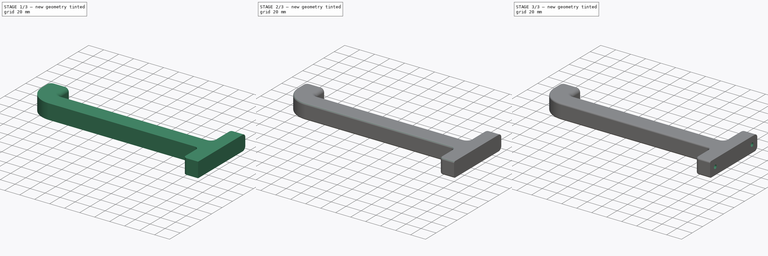
[diagram: build sequence overview — one tinted view per stage of 3, left to right]
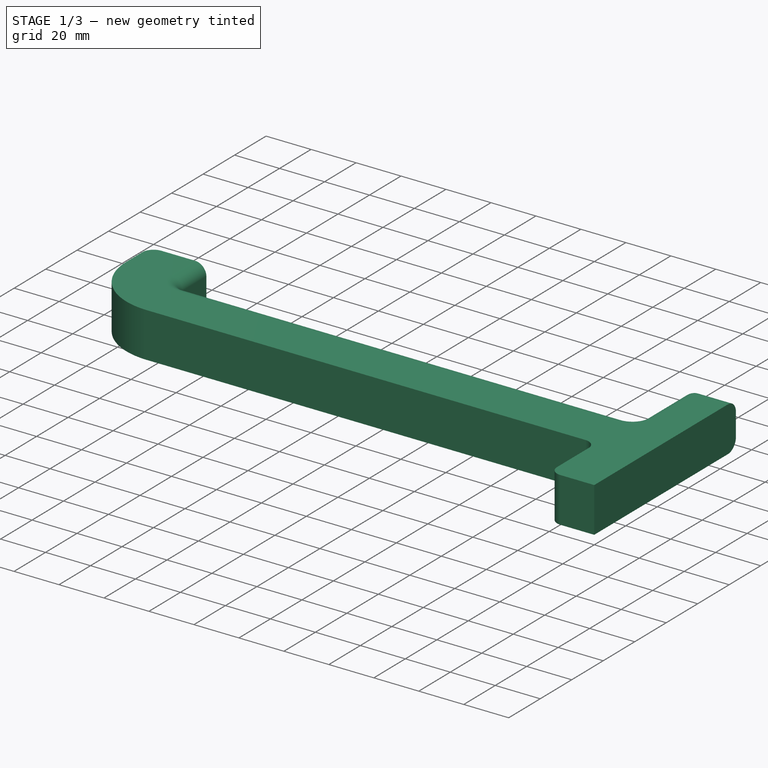
[diagram: stage 1 of 3 — iso view after this stage's code; geometry added in this stage tinted green]
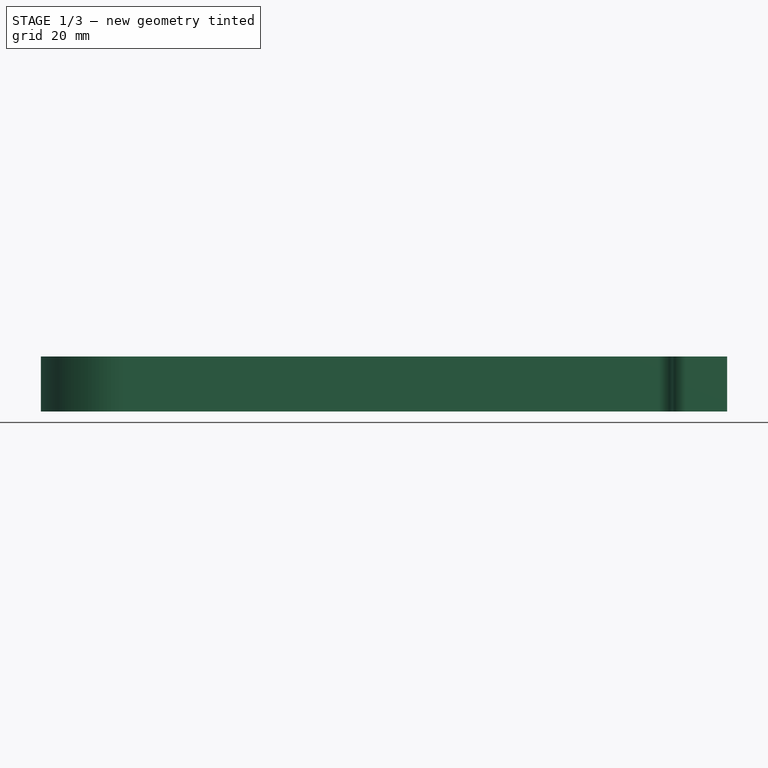
[diagram: stage 1 of 3 — front view after this stage's code; geometry added in this stage tinted green]
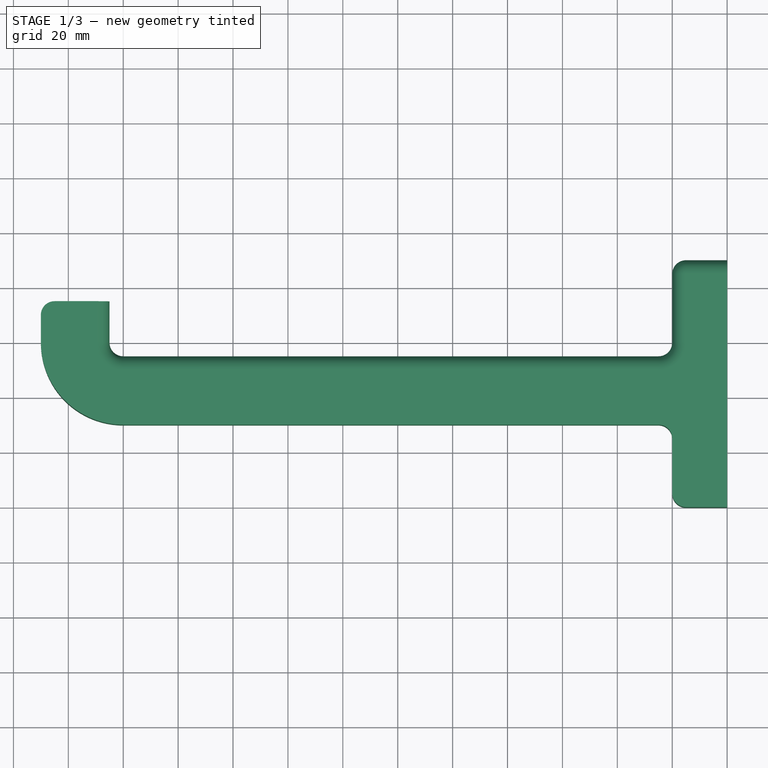
[diagram: stage 1 of 3 — top view after this stage's code; geometry added in this stage tinted green]
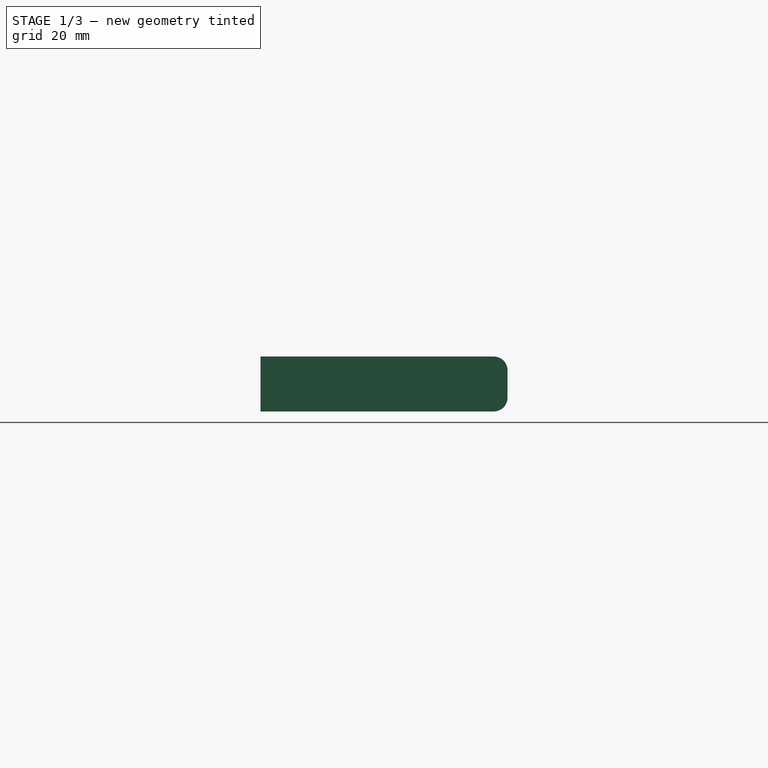
[diagram: stage 1 of 3 — right view after this stage's code; geometry added in this stage tinted green]
FCSTD DOCUMENT  (FreeCAD 0.21R33694 (Git))
Label: wheelhook
License: All rights reserved
LicenseURL: http://en.wikipedia.org/wiki/All_rights_reserved
objects: Sketcher::SketchObject×2, PartDesign::Fillet×2, Spreadsheet::Sheet×1, PartDesign::Pad×1, PartDesign::Plane×1, PartDesign::Pocket×1, PartDesign::Chamfer×1, PartDesign::Body×1
note: 14 computed .brp shape members not serialized (recipe doc carries the construction recipe); baked Part::Feature solids carry a one-line shape summary decoded from their .brp

FEATURE [Sketcher::SketchObject] Sketch
  FullyConstrained = true
  MapMode = 5
  Support = -> [XY_Plane]
  expr: Constraints[10] = <<settings>>.mounting_hole_spacing + <<settings>>.mounting_hole_edge
  expr: Constraints[14] = <<settings>>.mounting_plate_thickness
  expr: Constraints[23] = <<settings>>.hook_thickness
  expr: Constraints[24] = <<settings>>.hook_height
  expr: Constraints[25] = <<settings>>.hook_length + <<settings>>.mounting_plate_thickness
  expr: Constraints[29] = <<settings>>.hook_thickness
  expr: Constraints[33] = <<settings>>.hook_potrusion
  expr: Constraints[69] = <<settings>>.fillet_size
  expr: Constraints[70] = <<settings>>.fillet_size
  expr: Constraints[73] = <<settings>>.fillet_size + <<settings>>.hook_thickness
  expr: Constraints[82] = <<settings>>.fillet_size
  expr: Constraints[83] = <<settings>>.fillet_size
  expr: Constraints[9] = <<settings>>.mounting_hole_edge
  sketch-geometry (36):
    g0: LineSegment StartX=0 StartY=-80 StartZ=0 EndX=-250 EndY=-80 EndZ=0
    g1: LineSegment StartX=-250 StartY=-80 StartZ=0 EndX=-250 EndY=10 EndZ=0
    g2: LineSegment StartX=-250 StartY=10 StartZ=0 EndX=0 EndY=10 EndZ=0
    g3: LineSegment StartX=0 StartY=10 StartZ=0 EndX=0 EndY=-80 EndZ=0
    g4: GeomPoint X=-20 Y=-80 Z=0
    g5: GeomPoint X=-20 Y=10 Z=0
    g6: LineSegment StartX=-20 StartY=10 StartZ=0 EndX=-20 EndY=-80 EndZ=0
    g7: LineSegment StartX=-20 StartY=-50 StartZ=0 EndX=-250 EndY=-50 EndZ=0
    g8: LineSegment StartX=-20 StartY=-25 StartZ=0 EndX=-250 EndY=-25 EndZ=0
    g9: LineSegment StartX=-225 StartY=10 StartZ=0 EndX=-225 EndY=-80 EndZ=0
    g10: LineSegment StartX=-250 StartY=-5 StartZ=0 EndX=-225 EndY=-5 EndZ=0
    g11: LineSegment StartX=0 StartY=10 StartZ=0 EndX=0 EndY=-80 EndZ=0
    g12: LineSegment StartX=0 StartY=-80 StartZ=0 EndX=-15 EndY=-80 EndZ=0
    g13: LineSegment StartX=-20 StartY=-75 StartZ=0 EndX=-20 EndY=-55 EndZ=0
    g14: ArcOfCircle CenterX=-15 CenterY=-75 CenterZ=0 NormalX=0 NormalY=0 NormalZ=1 AngleXU=0 Radius=5 StartAngle=3.14159 EndAngle=4.71239
    g15: GeomPoint X=-20 Y=-80 Z=0
    g16: LineSegment StartX=-25 StartY=-50 StartZ=0 EndX=-220 EndY=-50 EndZ=0
    g17: LineSegment StartX=-250 StartY=-20 StartZ=0 EndX=-250 EndY=-10 EndZ=0
    g18: LineSegment StartX=-245 StartY=-5 StartZ=0 EndX=-225 EndY=-5 EndZ=0
    g19: GeomPoint X=-225 Y=-25 Z=0
    g20: LineSegment StartX=-225 StartY=-5 StartZ=0 EndX=-225 EndY=-20 EndZ=0
    g21: LineSegment StartX=-220 StartY=-25 StartZ=0 EndX=-25 EndY=-25 EndZ=0
    g22: LineSegment StartX=-20 StartY=5 StartZ=0 EndX=-20 EndY=-20 EndZ=0
    g23: LineSegment StartX=0 StartY=10 StartZ=0 EndX=-15 EndY=10 EndZ=0
    g24: ArcOfCircle CenterX=-15 CenterY=5 CenterZ=0 NormalX=0 NormalY=0 NormalZ=1 AngleXU=0 Radius=5 StartAngle=1.5708 EndAngle=3.14159
    g25: GeomPoint X=-20 Y=10 Z=0
    g26: ArcOfCircle CenterX=-25 CenterY=-55 CenterZ=0 NormalX=0 NormalY=0 NormalZ=1 AngleXU=0 Radius=5 StartAngle=6e-16 EndAngle=1.5708
    g27: GeomPoint X=-20 Y=-50 Z=0
    g28: ArcOfCircle CenterX=-25 CenterY=-20 CenterZ=0 NormalX=0 NormalY=0 NormalZ=1 AngleXU=0 Radius=5 StartAngle=4.71239 EndAngle=6.28319
    g29: GeomPoint X=-20 Y=-25 Z=0
    g30: ArcOfCircle CenterX=-220 CenterY=-20 CenterZ=0 NormalX=0 NormalY=0 NormalZ=1 AngleXU=0 Radius=30 StartAngle=3.14159 EndAngle=4.71239
    g31: GeomPoint X=-250 Y=-50 Z=0
    g32: ArcOfCircle CenterX=-245 CenterY=-10 CenterZ=0 NormalX=0 NormalY=0 NormalZ=1 AngleXU=0 Radius=5 StartAngle=1.5708 EndAngle=3.14159
    g33: GeomPoint X=-250 Y=-5 Z=0
    g34: ArcOfCircle CenterX=-220 CenterY=-20 CenterZ=0 NormalX=0 NormalY=0 NormalZ=1 AngleXU=0 Radius=5 StartAngle=3.14159 EndAngle=4.71239
    g35: GeomPoint X=-225 Y=-25 Z=0
  constraints (84):
    c: Coincident(g0,g1)
    c: Coincident(g1,g2)
    c: Coincident(g2,g3)
    c: Coincident(g3,g0)
    c: Horizontal(g0)
    c: Horizontal(g2)
    c: Vertical(g1)
    c: Vertical(g3)
    c: PointOnObject(g0,g-2)
    c: Distance(g-1,g2) = 10
    c: Distance(g-1,g0) = 80
    c: PointOnObject(g4,g0)
    c: PointOnObject(g5,g2)
    c: Vertical(g4,g5)
    c: Distance(g4,g0) = 20
    c: Coincident(g6,g5)
    c: Coincident(g6,g4)
    c: PointOnObject(g7,g6)
    c: PointOnObject(g7,g1)
    c: Horizontal(g7)
    c: PointOnObject(g8,g6)
    c: PointOnObject(g8,g1)
    c: Horizontal(g8)
    c: Distance(g7,g8) = 25
    c: Distance(g7,g4) = 30
    c: Distance(g0,g0) = 250
    c: PointOnObject(g9,g2)
    c: PointOnObject(g9,g0)
    c: Vertical(g9)
    c: Distance(g9,g0) = 25
    c: PointOnObject(g10,g1)
    c: PointOnObject(g10,g9)
    c: Horizontal(g10)
    c: Distance(g10,g8) = 20
    c: Coincident(g11,g2)
    c: Coincident(g11,g0)
    c: Coincident(g12,g11)
    c: Coincident(g15,g4)
    c: Coincident(g27,g7)
    c: PointOnObject(g15,g12)
    c: PointOnObject(g15,g13)
    c: Tangent(g12,g14) = 1.5708
    c: Tangent(g13,g14) = 1.5708
    c: Coincident(g31,g7)
    c: Coincident(g33,g10)
    c: Coincident(g18,g10)
    c: PointOnObject(g19,g9)
    c: PointOnObject(g19,g8)
    c: Coincident(g20,g18)
    c: Coincident(g35,g19)
    c: Coincident(g29,g8)
    c: Coincident(g25,g5)
    c: Coincident(g23,g11)
    c: PointOnObject(g25,g23)
    c: PointOnObject(g25,g22)
    c: Tangent(g23,g24) = -1.5708
    c: Tangent(g22,g24) = -1.5708
    c: PointOnObject(g27,g13)
    c: PointOnObject(g27,g16)
    c: Tangent(g13,g26) = -1.5708
    c: Tangent(g16,g26) = -1.5708
    c: PointOnObject(g29,g22)
    c: PointOnObject(g29,g21)
    c: Tangent(g22,g28) = 1.5708
    c: Tangent(g21,g28) = -1.5708
    c: PointOnObject(g31,g16)
    c: PointOnObject(g31,g17)
    c: Tangent(g16,g30) = 1.5708
    c: Tangent(g17,g30) = 1.5708
    c: Distance(g24,g22) = 5
    c: Distance(g22,g28) = 5
    c: Vertical(g28,g26)
    c: Vertical(g14,g24)
    c: Distance(g17,g30) = 30
    c: PointOnObject(g33,g18)
    c: PointOnObject(g33,g17)
    c: Tangent(g18,g32) = 1.5708
    c: Tangent(g17,g32) = 1.5708
    c: PointOnObject(g35,g20)
    c: PointOnObject(g35,g21)
    c: Tangent(g20,g34) = -1.5708
    c: Tangent(g21,g34) = -1.5708
    c: Distance(g34,g20) = 5
    c: Distance(g32,g18) = 5
FEATURE [Spreadsheet::Sheet] Spreadsheet  label="settings"
  cells = A1='Mounting hole spacing; B1(mounting_hole_spacing)=70; C1='mm; D1='Fillet size; E1(fillet_size)=5; F1='mm; A2='Mounting hole edge; B2(mounting_hole_edge)=10; C2='mm; D2='fillet small; E2(fillet_size_small)=2; F2='mm; A3='Mounting holes size; B3(mounting_hole_size)=5; C3='mm; A4='mounting plate thickness; B4(mounting_plate_thickness)=20; C4='mm; A5='hook height position; B5(hook_height)=30; C5='mm; A6='hook length; B6(hook_length)=230; C6='mm; A7='hook thickness; B7(hook_thickness)=25; C7='mm; A8='hook potrusion; B8(hook_potrusion)=20; C8='mm; A9='hook depth; B9(hook_depth)=20; C9='mm
FEATURE [PartDesign::Pad] Pad
  Direction = (0,0,1)
  Length = 20
  Length2 = 10
  Profile = -> Sketch
  ReferenceAxis = -> Sketch [N_Axis]
  Type = 0
  expr: Length = <<settings>>.hook_depth
FEATURE [PartDesign::Fillet] Fillet  label="top_rounding"
  Base = -> Pad [Edge39,Edge40]
  BaseFeature = -> Pad
  Radius = 5
  SupportTransform = false
  UseAllEdges = false
  expr: Radius = <<settings>>.fillet_size
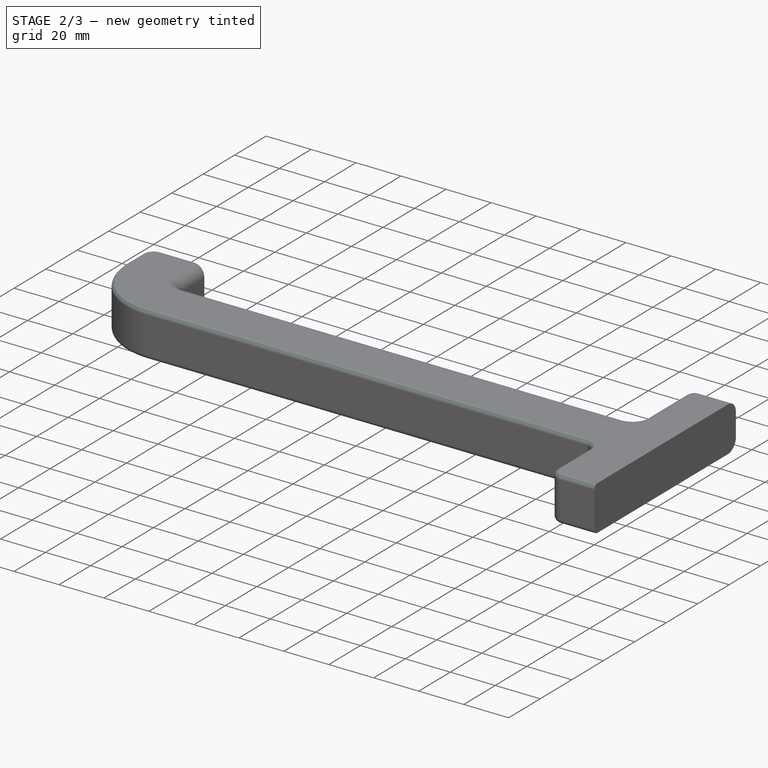
[diagram: stage 2 of 3 — iso view after this stage's code; geometry added in this stage tinted green]
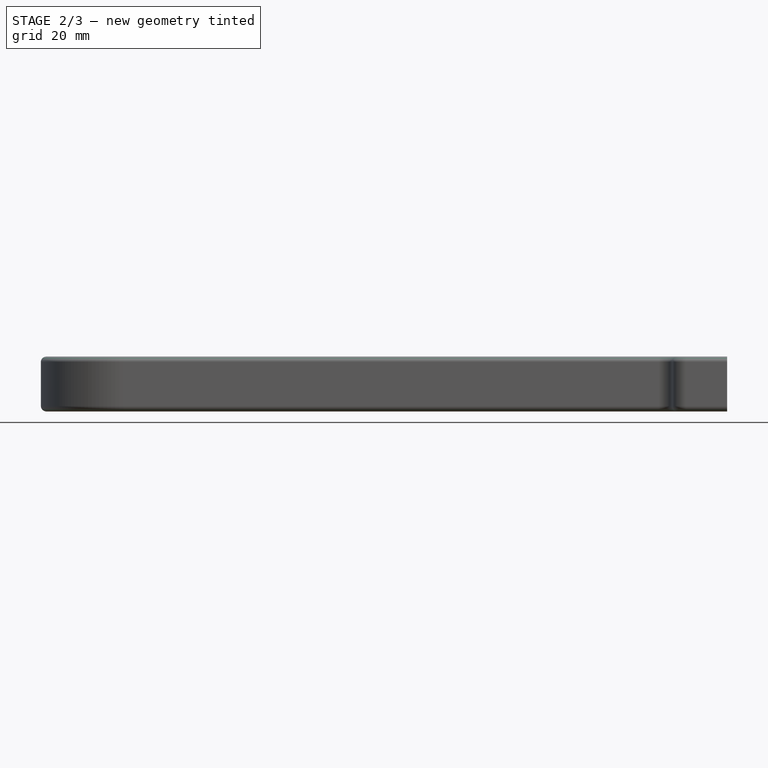
[diagram: stage 2 of 3 — front view after this stage's code; geometry added in this stage tinted green]
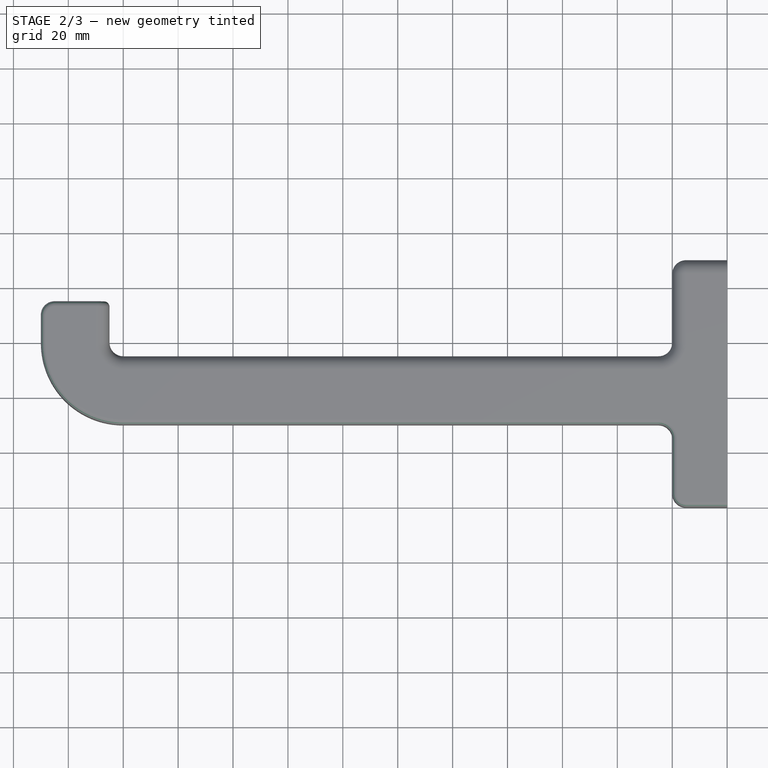
[diagram: stage 2 of 3 — top view after this stage's code; geometry added in this stage tinted green]
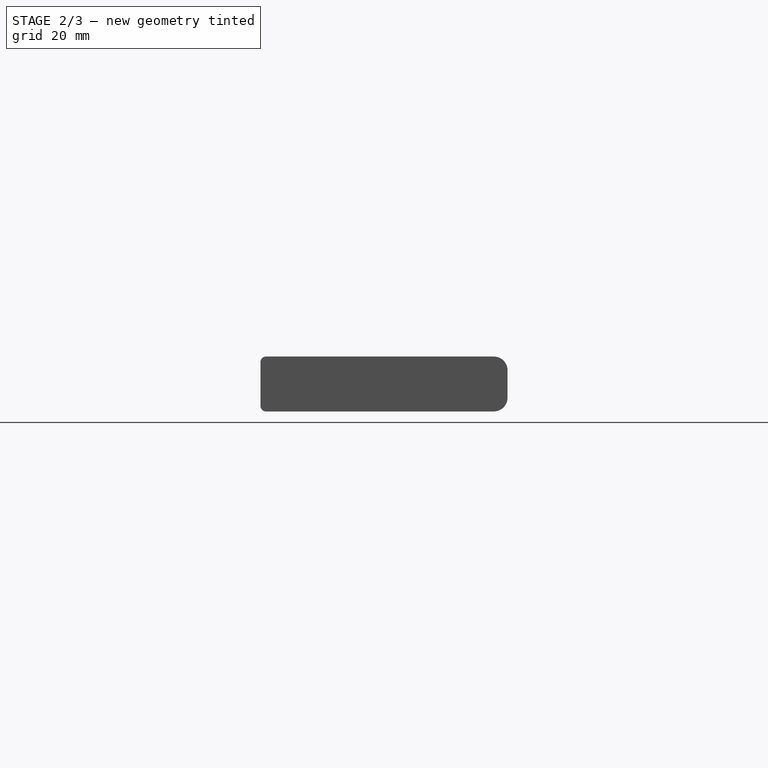
[diagram: stage 2 of 3 — right view after this stage's code; geometry added in this stage tinted green]
FEATURE [PartDesign::Fillet] Fillet001  label="bottom_rounding"
  Base = -> Fillet [Edge22,Edge36]
  BaseFeature = -> Fillet
  Radius = 2
  SupportTransform = false
  UseAllEdges = false
  expr: Radius = <<settings>>.fillet_size_small
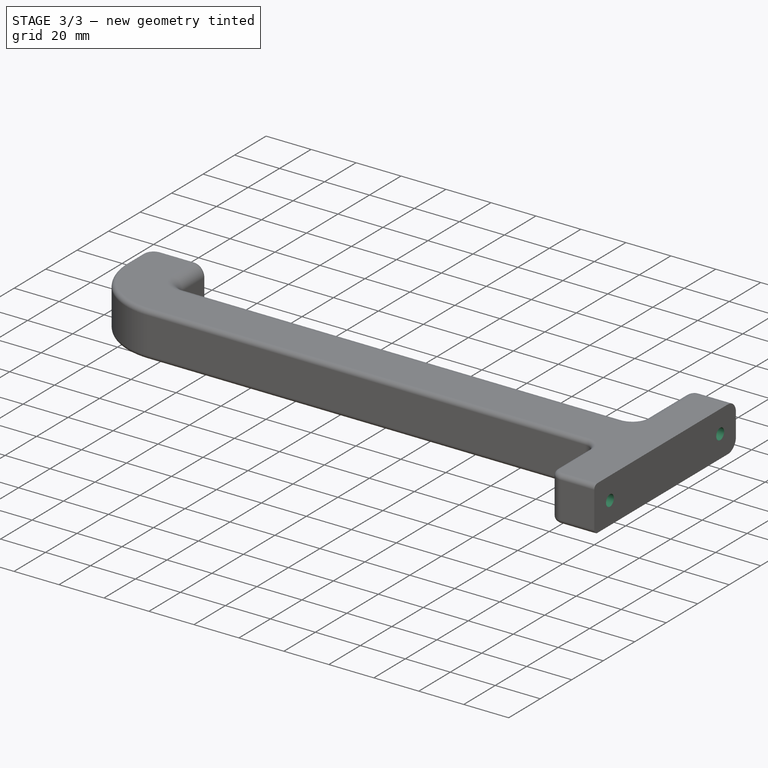
[diagram: stage 3 of 3 — iso view after this stage's code; geometry added in this stage tinted green]
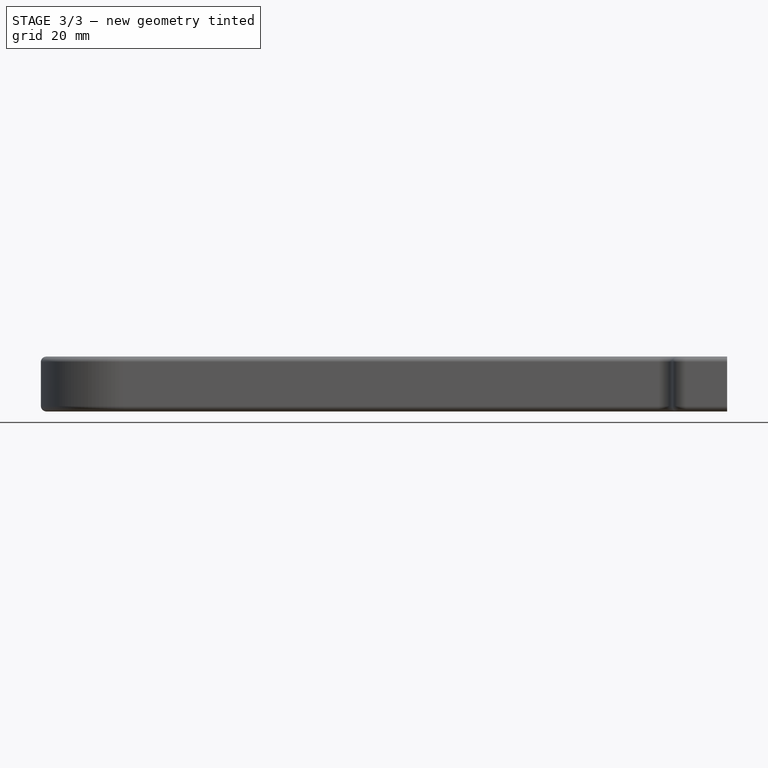
[diagram: stage 3 of 3 — front view after this stage's code; geometry added in this stage tinted green]
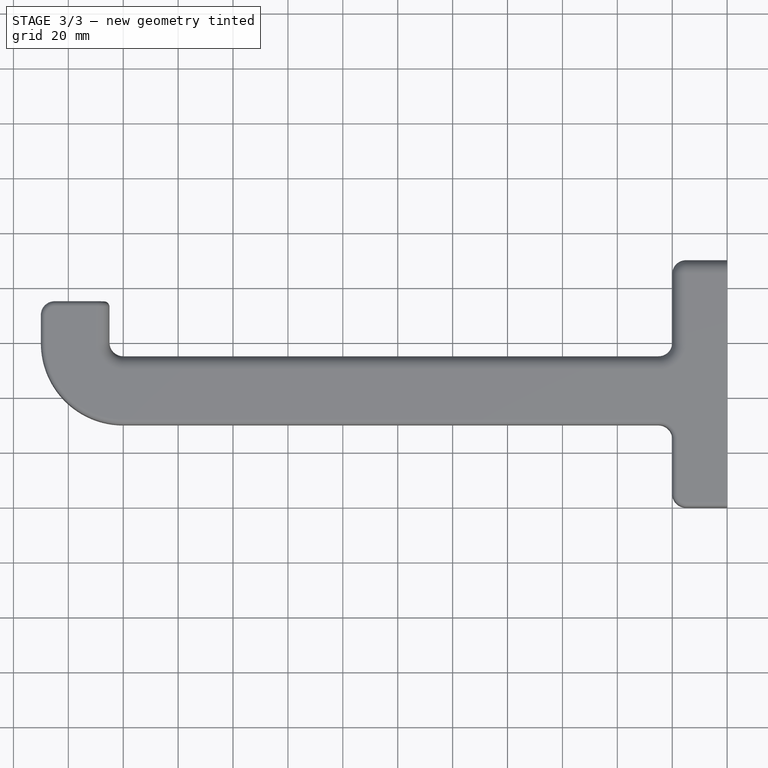
[diagram: stage 3 of 3 — top view after this stage's code; geometry added in this stage tinted green]
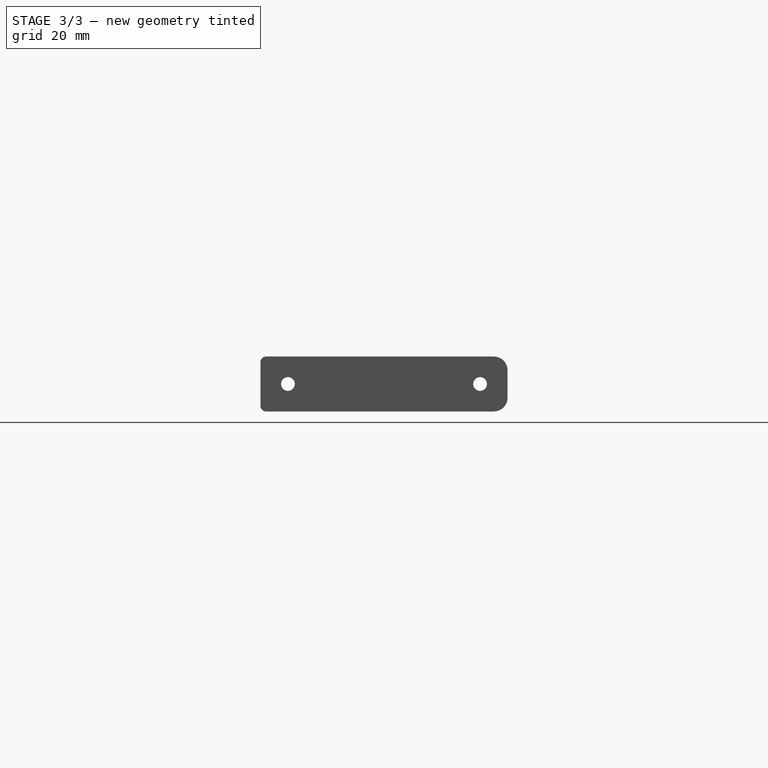
[diagram: stage 3 of 3 — right view after this stage's code; geometry added in this stage tinted green]
FEATURE [PartDesign::Plane] DatumPlane  label="mountplate_plane"
  Length = 119.491
  MapMode = 5
  Placement = pos=(0,0,0) rot=(0.57735,0.57735,0.57735;2.0944rad)
  ResizeMode = 0
  Support = -> [YZ_Plane]
  Width = 64.4914
FEATURE [Sketcher::SketchObject] Sketch001
  FullyConstrained = true
  MapMode = 5
  Placement = pos=(0,0,0) rot=(0.57735,0.57735,0.57735;2.0944rad)
  Support = -> [DatumPlane]
  expr: Constraints[10] = <<settings>>.mounting_hole_spacing
  expr: Constraints[14] = <<settings>>.mounting_hole_size
  expr: Constraints[9] = <<settings>>.hook_depth / 2
  sketch-geometry (6):
    g0: LineSegment StartX=0 StartY=0 StartZ=0 EndX=-70 EndY=0 EndZ=0
    g1: LineSegment StartX=-70 StartY=0 StartZ=0 EndX=-70 EndY=10 EndZ=0
    g2: LineSegment StartX=-70 StartY=10 StartZ=0 EndX=0 EndY=10 EndZ=0
    g3: LineSegment StartX=0 StartY=10 StartZ=0 EndX=0 EndY=0 EndZ=0
    g4: Circle CenterX=-70 CenterY=10 CenterZ=0 NormalX=0 NormalY=0 NormalZ=1 AngleXU=0 Radius=2.5
    g5: Circle CenterX=0 CenterY=10 CenterZ=0 NormalX=0 NormalY=0 NormalZ=1 AngleXU=0 Radius=2.5
  constraints (15):
    c: Coincident(g0,g1)
    c: Coincident(g1,g2)
    c: Coincident(g2,g3)
    c: Coincident(g3,g0)
    c: Horizontal(g0)
    c: Horizontal(g2)
    c: Vertical(g1)
    c: Vertical(g3)
    c: Coincident(g0,g-1)
    c: Distance(g3) = 10
    c: Distance(g0) = 70
    c: Coincident(g4,g1)
    c: Coincident(g5,g2)
    c: Equal(g4,g5)
    c: Diameter(g4) = 5
FEATURE [PartDesign::Pocket] Pocket  label="mounting_holes"
  BaseFeature = -> Fillet001
  Direction = (-1,1e-16,-1e-16)
  Length = 20
  Length2 = 5
  Profile = -> Sketch001
  ReferenceAxis = -> Sketch001 [N_Axis]
  Type = 0
  expr: Length = <<settings>>.mounting_plate_thickness
FEATURE [PartDesign::Chamfer] Chamfer  label="hole_chamfer"
  Angle = 45
  Base = -> Pocket [Edge52,Edge54]
  BaseFeature = -> Pocket
  ChamferType = 0
  FlipDirection = false
  Size = 3
  Size2 = 1
  SupportTransform = false
  UseAllEdges = false
FEATURE [PartDesign::Body] Body
  Group = -> [Sketch,Pad,Fillet,Fillet001,DatumPlane,Sketch001,Pocket,Chamfer]
  Origin = -> Origin
  Tip = -> Chamfer
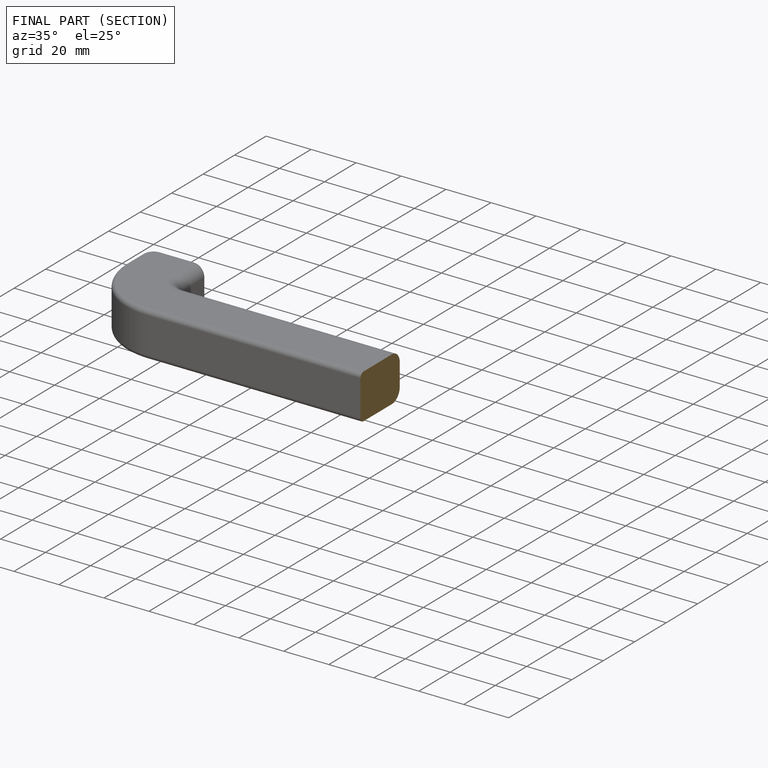
[diagram: finished part — half-section view (interior)]
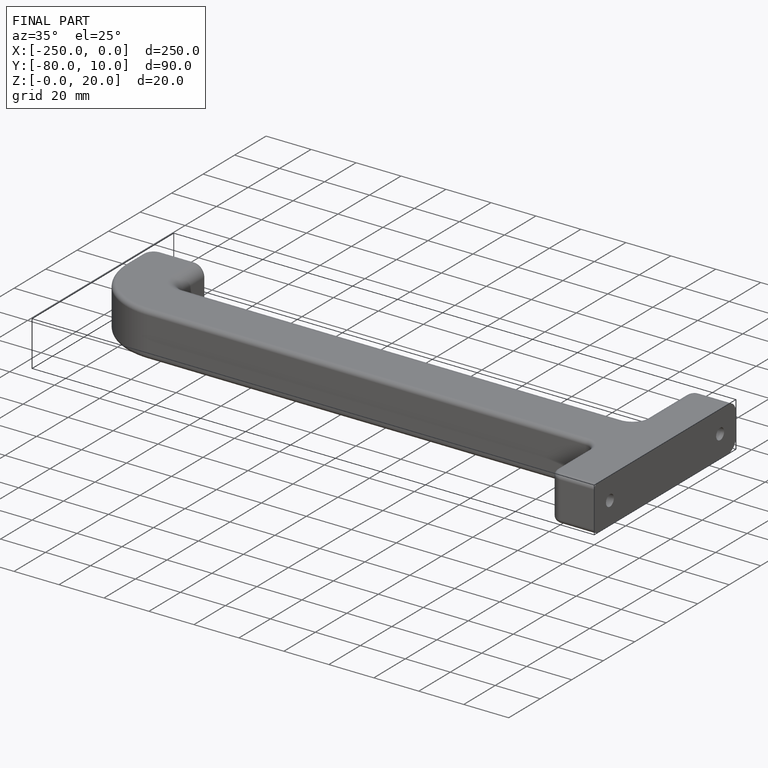
[diagram: finished part — iso view with bounding-box wireframe]
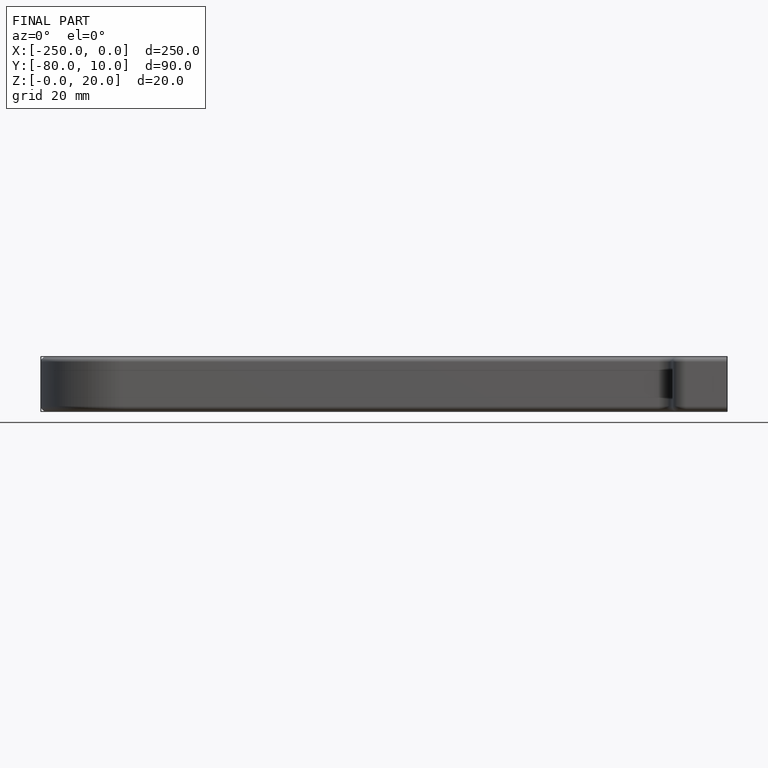
[diagram: finished part — front view with bounding-box wireframe]
